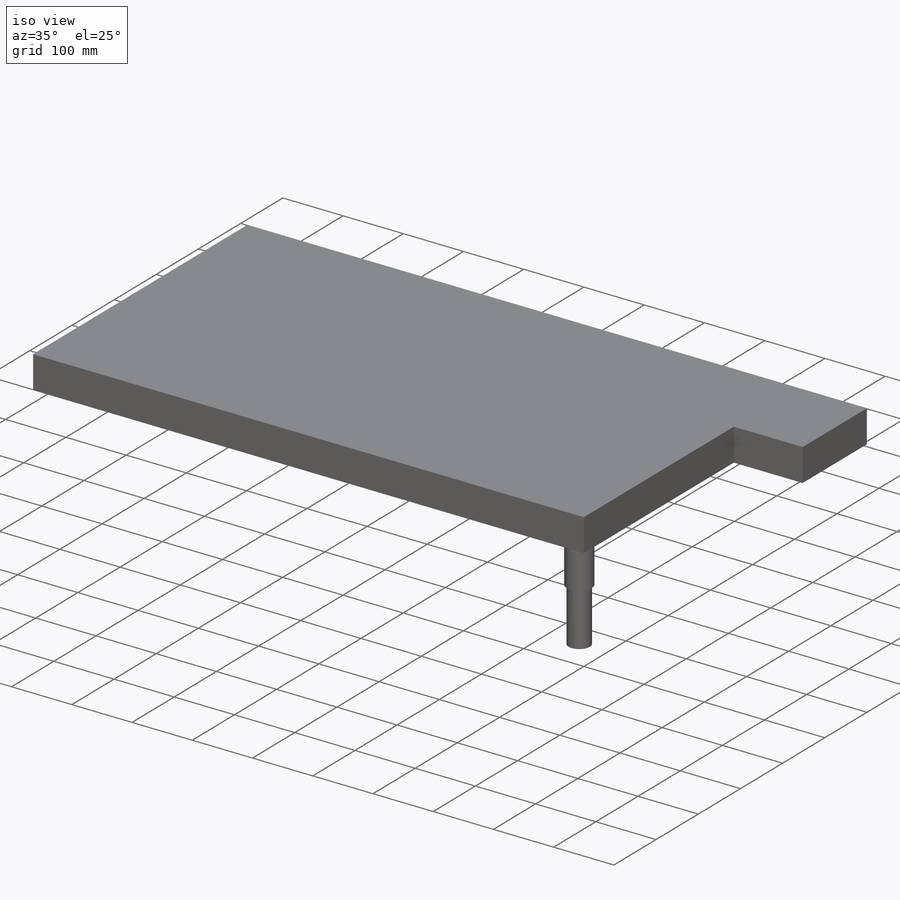
[diagram: iso view]
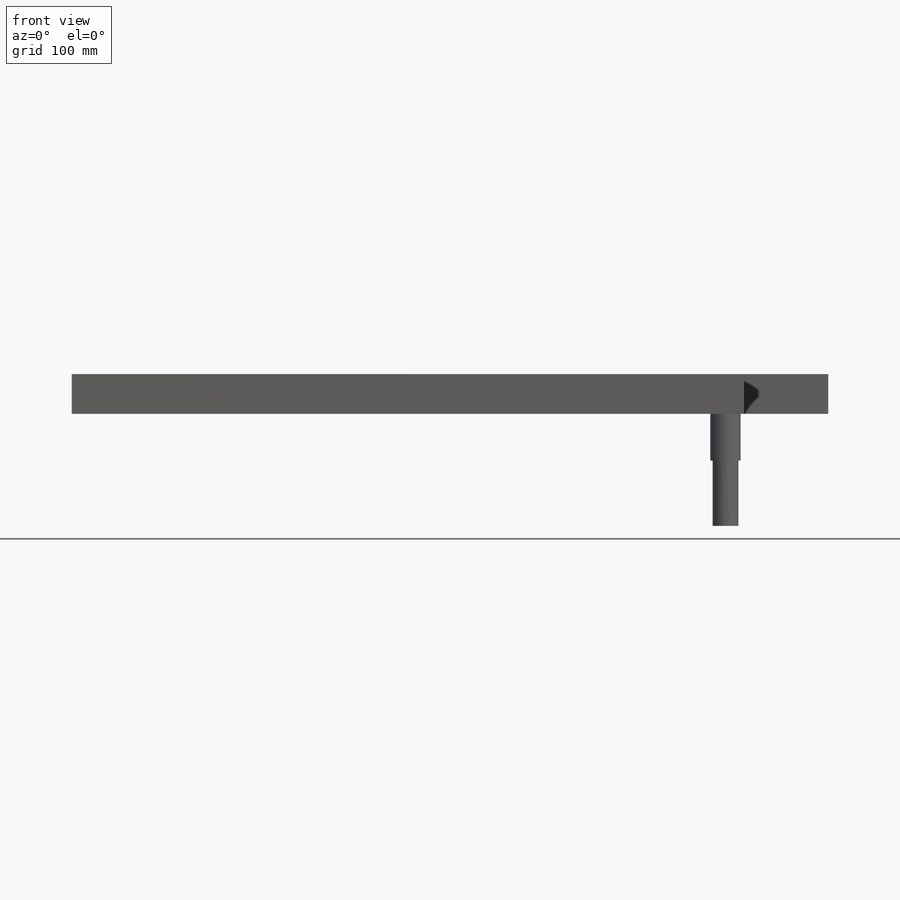
[diagram: front view]
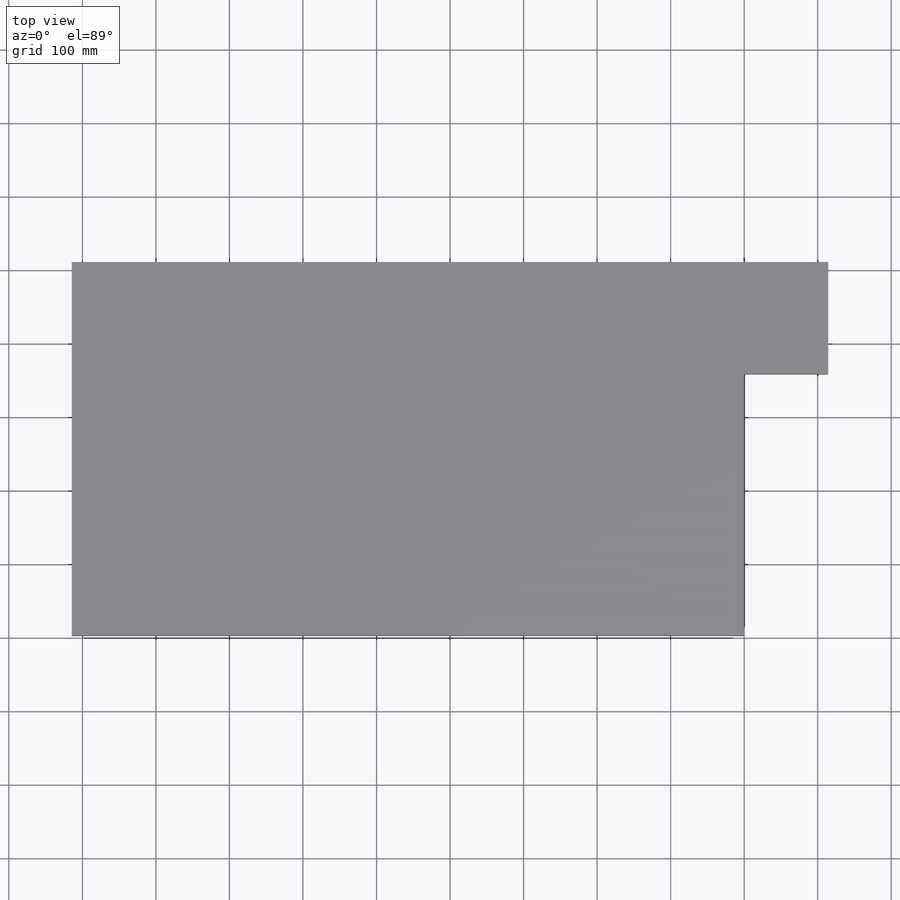
[diagram: top view]
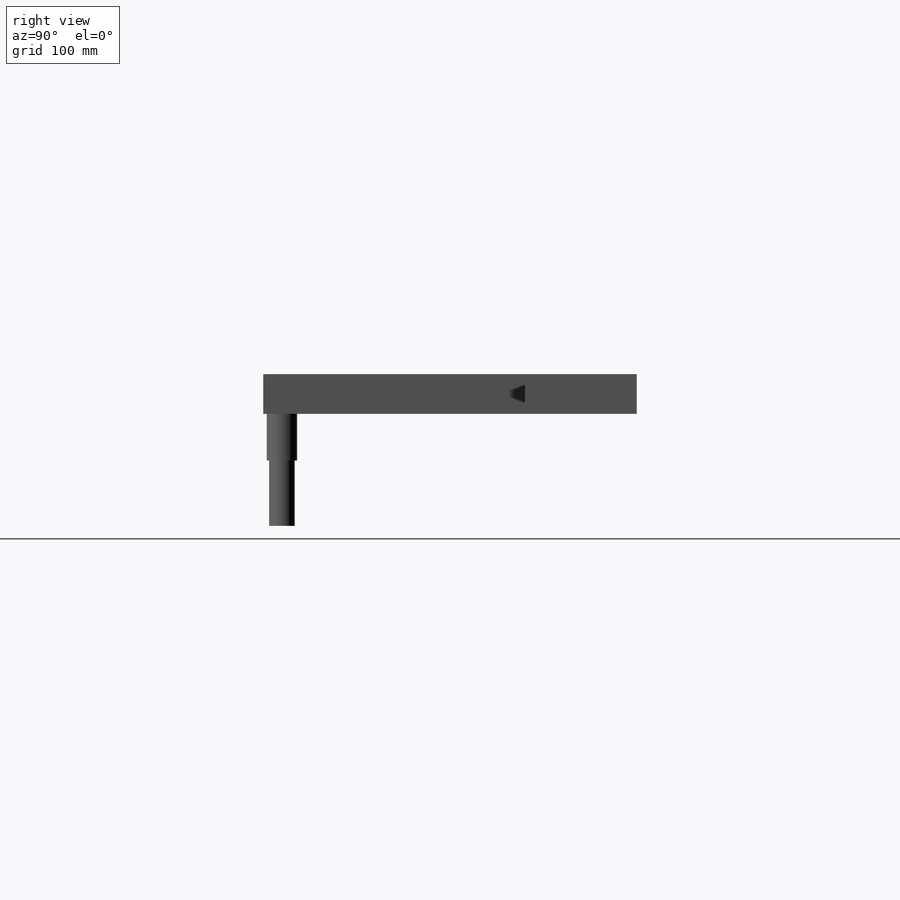
[diagram: right view]
SOLIDWORKS PART (.sldprt)
format: sldprt  version: not decoded by parser v0  size: 206,336 bytes
history: native  units: mm
features: sketch x5, extrude x5, material x1 (+12 scaffold rows collapsed)
feature tree (23):
  scaffold x12  (default folders/planes/origin — collapsed)
  material  "Material <not specified>"
  sketch  "Sketch1"  dims[c1.D1=425.45mm c1.D2=304.8mm c1.D3=914.4mm c1.D4=152.4mm c1.D5=114.3mm c1.D6=425.45mm c2.D1=508.0mm]
  extrude  "Boss-Extrude1"  Depth=3.175mm
  sketch  "Sketch2"  dims[c1.D1=0.0mm c1.D2=50.8mm c2.D1=0.0mm c2.D2=50.8mm]
  extrude  "Boss-Extrude2"  Depth=50.8mm
  sketch  "Sketch3"  dims[D1=34.925mm]
  extrude  "Boss-Extrude3"  Depth=152.4mm
  sketch  "Sketch4"  dims[D1=41.275mm]
  extrude  "Boss-Extrude4"  Depth=63.5mm
  sketch  "Sketch5"  dims[D1=234.95mm]
  extrude  "Boss-Extrude5"  Depth=111.125mm
decode coverage: 10 of 10 modeling features carry decoded parameters
note: suppression state not decoded; provenance and decode notes live in map.json
